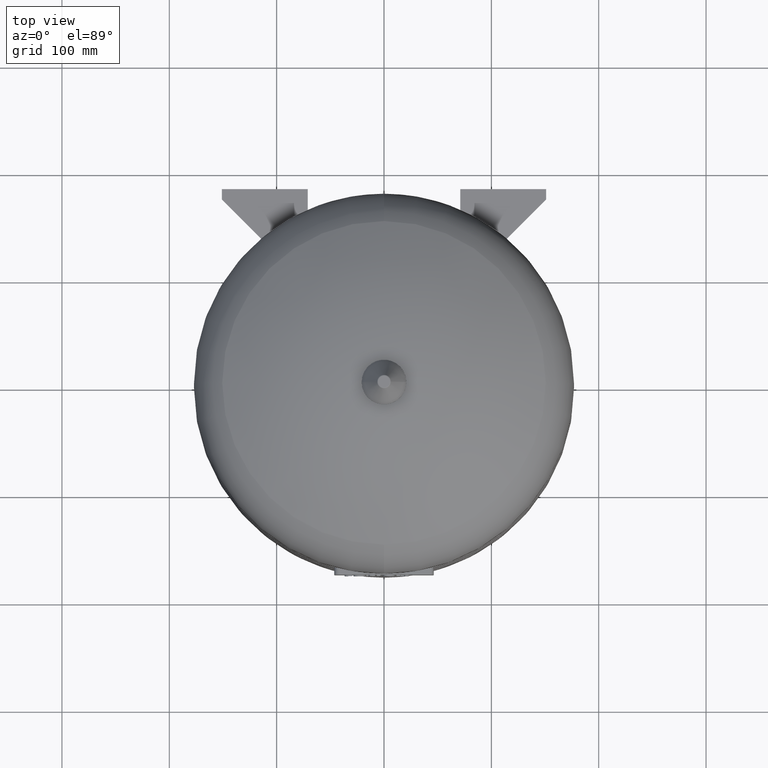
[diagram: clean part render]
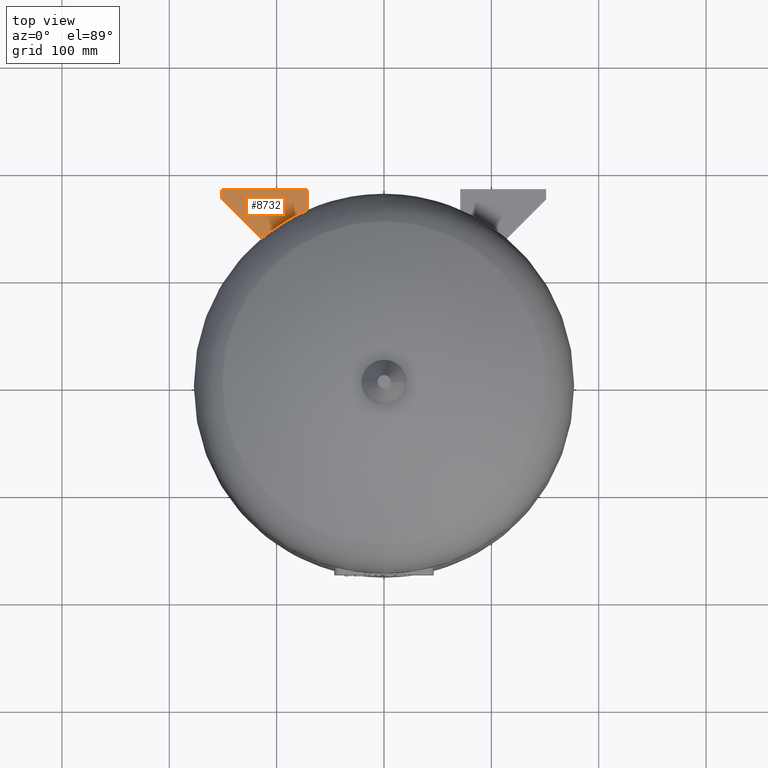
[diagram: same view with one face highlighted and labeled with its STEP entity id]
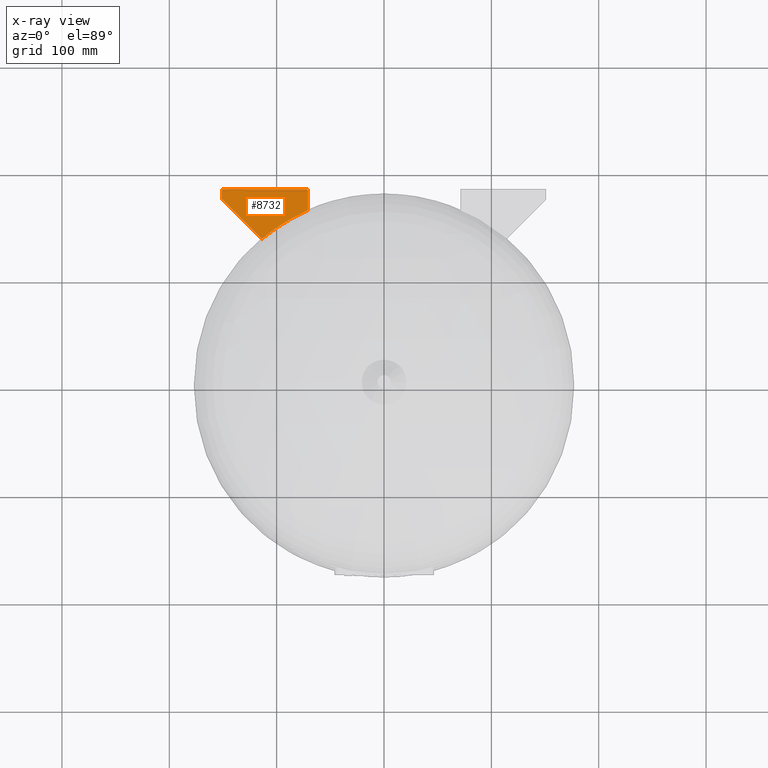
[diagram: x-ray of the same camera — body ghosted, the highlighted face saturated]
A machine part, top view. The second image highlights one B-rep face of the part: STEP entity #8732.
The next image is the same camera in x-ray: the body ghosted, the highlighted face saturated — about 0% of this face is hidden behind the body in this view.
In plain terms, the highlighted face is a freeform B-spline surface patch.
Its self-contained STEP definition (entity closure, byte-faithful):
#8428=CARTESIAN_POINT('',(-71.0,162.13574559608995,299.5));
#8429=VERTEX_POINT('',#8428);
#8436=CARTESIAN_POINT('',(-113.6735737837013,135.67357378370127,299.5));
#8437=VERTEX_POINT('',#8436);
#8438=CARTESIAN_POINT('',(-5.684342E-014,-2.755455E-015,299.5));
#8439=DIRECTION('',(4.887835E-018,-5.833810E-018,1.0));
#8440=DIRECTION('',(-0.642223580698877,0.766517366009612,7.610799E-018));
#8441=AXIS2_PLACEMENT_3D('',#8438,#8439,#8440);
#8442=CIRCLE('',#8441,176.99999999999994);
#8443=EDGE_CURVE('',#8429,#8437,#8442,.T.);
#8531=CARTESIAN_POINT('',(-151.0,173.0,299.5));
#8532=VERTEX_POINT('',#8531);
#8533=CARTESIAN_POINT('',(-113.6735737837013,135.67357378370127,299.5));
#8534=DIRECTION('',(-0.707106781186547,0.707106781186548,0.0));
#8535=VECTOR('',#8534,52.787538190008291);
#8536=LINE('',#8533,#8535);
#8537=EDGE_CURVE('',#8437,#8532,#8536,.T.);
#8682=CARTESIAN_POINT('',(-71.0,182.0,299.5));
#8683=VERTEX_POINT('',#8682);
#8690=CARTESIAN_POINT('',(-71.000000000000014,162.13574559608995,299.5));
#8691=DIRECTION('',(0.0,1.0,0.0));
#8692=VECTOR('',#8691,19.864254403910053);
#8693=LINE('',#8690,#8692);
#8694=EDGE_CURVE('',#8429,#8683,#8693,.T.);
#8708=CARTESIAN_POINT('',(-71.000000000000014,182.0,299.5));
#8709=CARTESIAN_POINT('',(-151.0,182.0,299.5));
#8710=CARTESIAN_POINT('',(-71.000000000000014,135.67357378370124,299.5));
#8711=CARTESIAN_POINT('',(-151.0,135.67357378370127,299.5));
#8712=B_SPLINE_SURFACE_WITH_KNOTS('',1,1,((#8708,#8710),(#8709,#8711)),.UNSPECIFIED.,.F.,.F.,.U.,(2,2),(2,2),(0.0,79.999999999999986),(0.0,46.326426216298756),.UNSPECIFIED.);
#8713=ORIENTED_EDGE('',*,*,#8443,.F.);
#8714=ORIENTED_EDGE('',*,*,#8694,.T.);
#8715=CARTESIAN_POINT('',(-151.0,182.0,299.5));
#8716=VERTEX_POINT('',#8715);
#8717=CARTESIAN_POINT('',(-71.0,182.0,299.5));
#8718=DIRECTION('',(-1.0,0.0,0.0));
#8719=VECTOR('',#8718,80.0);
#8720=LINE('',#8717,#8719);
#8721=EDGE_CURVE('',#8683,#8716,#8720,.T.);
#8722=ORIENTED_EDGE('',*,*,#8721,.T.);
#8723=CARTESIAN_POINT('',(-151.0,173.0,299.5));
#8724=DIRECTION('',(0.0,1.0,0.0));
#8725=VECTOR('',#8724,9.0);
#8726=LINE('',#8723,#8725);
#8727=EDGE_CURVE('',#8532,#8716,#8726,.T.);
#8728=ORIENTED_EDGE('',*,*,#8727,.F.);
#8729=ORIENTED_EDGE('',*,*,#8537,.F.);
#8730=EDGE_LOOP('',(#8713,#8714,#8722,#8728,#8729));
#8731=FACE_OUTER_BOUND('',#8730,.T.);
#8732=ADVANCED_FACE('',(#8731),#8712,.T.);